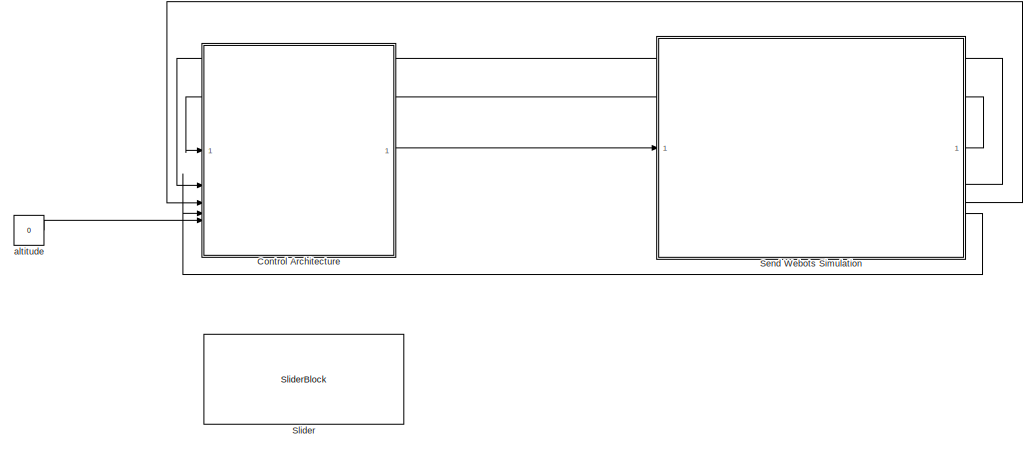
[diagram: root canvas - part 1/3, top right region]
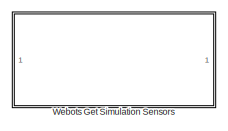
[diagram: root canvas - part 2/3, top left region]
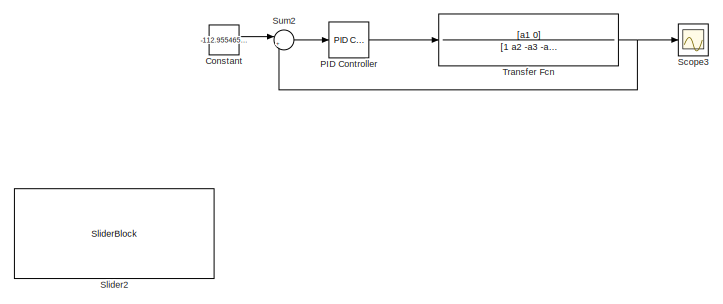
[diagram: root canvas - part 3/3, bottom center region]
MODEL slx_a7795d3d2276
KIND model
CONFIG AbsTol = auto
CONFIG EnableMultiTasking = off
CONFIG FixedStep = 0.016
CONFIG MaxStep = auto
CONFIG MinStep = auto
CONFIG RelTol = 1e-3
CONFIG SampleTimeConstraint = Unconstrained
CONFIG SolverName = ode5
CONFIG StartTime = 0.0
CONFIG StopTime = inf
BLOCK [Constant] Constant
  Commented = on
  Value = -112.9554655870445
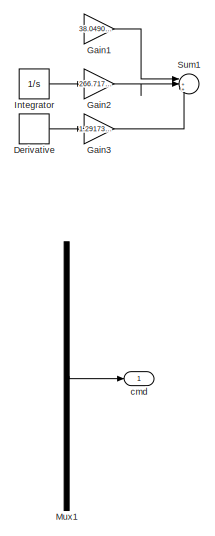
[diagram: Control Architecture - part 1/2, right side, full height]
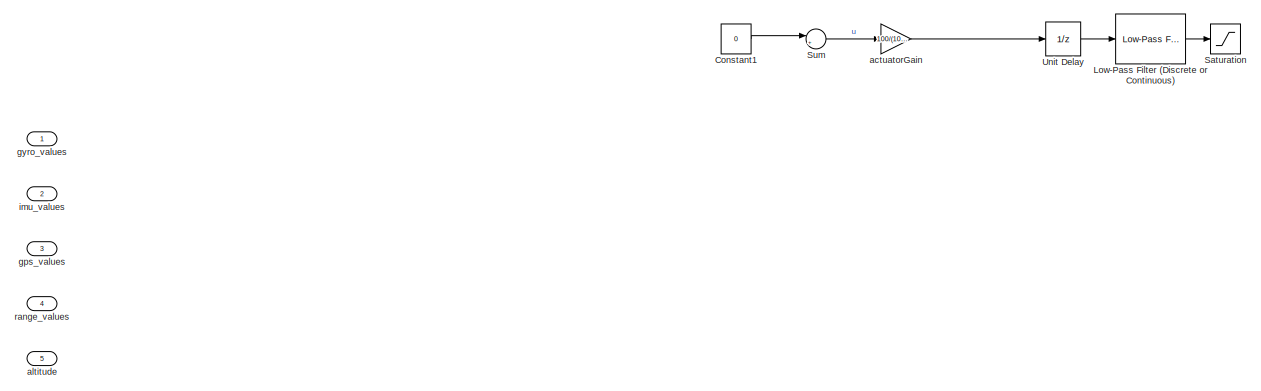
[diagram: Control Architecture - part 2/2, central region]
BLOCK [SubSystem] Control Architecture
BLOCK [Constant] Control Architecture/Constant1
  Value = 0
BLOCK [Derivative] Control Architecture/Derivative
  CoefficientInTFapproximation = 0.016
BLOCK [Gain] Control Architecture/Gain1
  Gain = 38.0490093619521
BLOCK [Gain] Control Architecture/Gain2
  Gain = 266.717514633212
BLOCK [Gain] Control Architecture/Gain3
  Gain = 1.2917321164317
BLOCK [Integrator] Control Architecture/Integrator
  AbsoluteTolerance = 0.016
BLOCK [Reference] Control Architecture/Low-Pass Filter (Discrete or Continuous)  REF=eeGeneralControl/Low-Pass Filter
(Discrete or Continuous)
  LibrarySourceBlock = ee_sl_lib/General Control/Low-Pass Filter\n(Discrete or Continuous)
  SourceBlock = eeGeneralControl/Low-Pass Filter\n(Discrete or Continuous)
  SourceType = Low-Pass Filter (Discrete or Continuous)
BLOCK [Mux] Control Architecture/Mux1
  DisplayOption = bar
BLOCK [Saturate] Control Architecture/Saturation
  LowerLimit = -100
  UpperLimit = 100
BLOCK [Sum] Control Architecture/Sum
  Inputs = |++
BLOCK [Sum] Control Architecture/Sum1
  Inputs = |+++
BLOCK [UnitDelay] Control Architecture/Unit Delay
  HasFrameUpgradeWarning = on
  SampleTime = -1
BLOCK [Gain] Control Architecture/actuatorGain
  Gain = 100/(1000)
BLOCK [Inport] Control Architecture/altitude
  Port = 5
BLOCK [Outport] Control Architecture/cmd
BLOCK [Inport] Control Architecture/gps_values
  Port = 3
BLOCK [Inport] Control Architecture/gyro_values
  NameLocation = top
BLOCK [Inport] Control Architecture/imu_values
  Port = 2
BLOCK [Inport] Control Architecture/range_values
  Port = 4
BLOCK [Reference] PID Controller  REF=slpidlib/PID Controller
  Commented = on
  LibrarySourceBlock = simulink/Continuous/PID Controller
  SourceBlock = slpidlib/PID Controller
  SourceType = PID 1dof
BLOCK [Scope] Scope3
  Commented = on
  Floating = off
  NumInputPorts = 1
  ScopeSpecificationString = Simulink.scopes.TimeScopeBlockCfg('CurrentConfiguration', extmgr.ConfigurationSet(extmgr.Configuration('Core','General UI',true),extmgr.Configuration('Core','Source UI',true),extmgr.Configuration('Sources','WiredSimulink',true,'DataLoggingVariableName','ScopeData1'),extmgr.Configuration('Visuals','Time Domain',true,'SerializedDisplays',{struct('MinYLimReal','-80979417155250256853805277177820653318...<+3288ch>
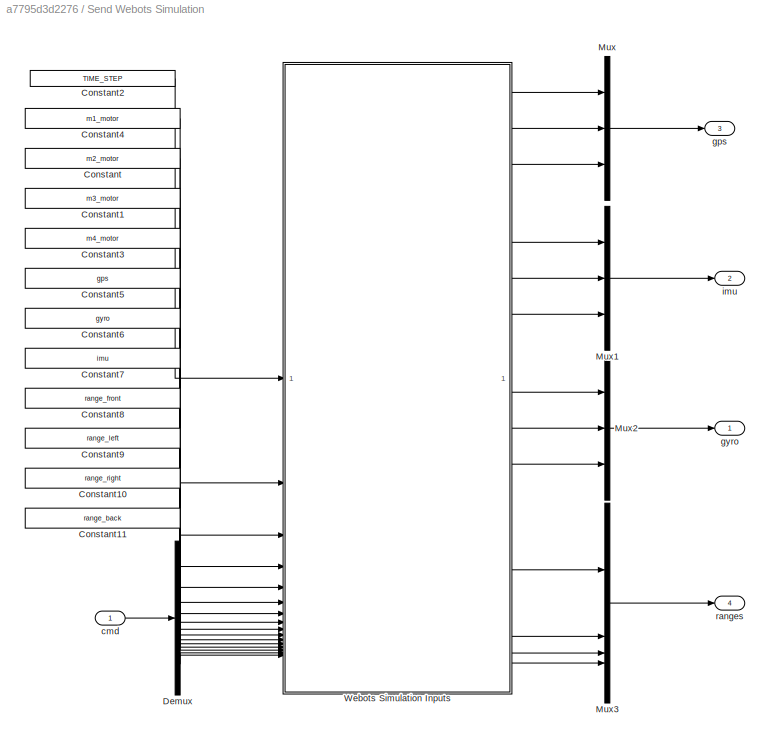
BLOCK [SubSystem] Send Webots Simulation
BLOCK [Constant] Send Webots Simulation/Constant
  Value = m2_motor
BLOCK [Constant] Send Webots Simulation/Constant1
  Value = m3_motor
BLOCK [Constant] Send Webots Simulation/Constant10
  Value = range_right
BLOCK [Constant] Send Webots Simulation/Constant11
  Value = range_back
BLOCK [Constant] Send Webots Simulation/Constant2
  Value = TIME_STEP
BLOCK [Constant] Send Webots Simulation/Constant3
  Value = m4_motor
BLOCK [Constant] Send Webots Simulation/Constant4
  Value = m1_motor
BLOCK [Constant] Send Webots Simulation/Constant5
  Value = gps
BLOCK [Constant] Send Webots Simulation/Constant6
  Value = gyro
BLOCK [Constant] Send Webots Simulation/Constant7
  Value = imu
BLOCK [Constant] Send Webots Simulation/Constant8
  Value = range_front
BLOCK [Constant] Send Webots Simulation/Constant9
  Value = range_left
BLOCK [Demux] Send Webots Simulation/Demux
BLOCK [Mux] Send Webots Simulation/Mux
  DisplayOption = bar
  Inputs = 3
BLOCK [Mux] Send Webots Simulation/Mux1
  DisplayOption = bar
  Inputs = 3
BLOCK [Mux] Send Webots Simulation/Mux2
  DisplayOption = bar
  Inputs = 3
BLOCK [Mux] Send Webots Simulation/Mux3
  DisplayOption = bar
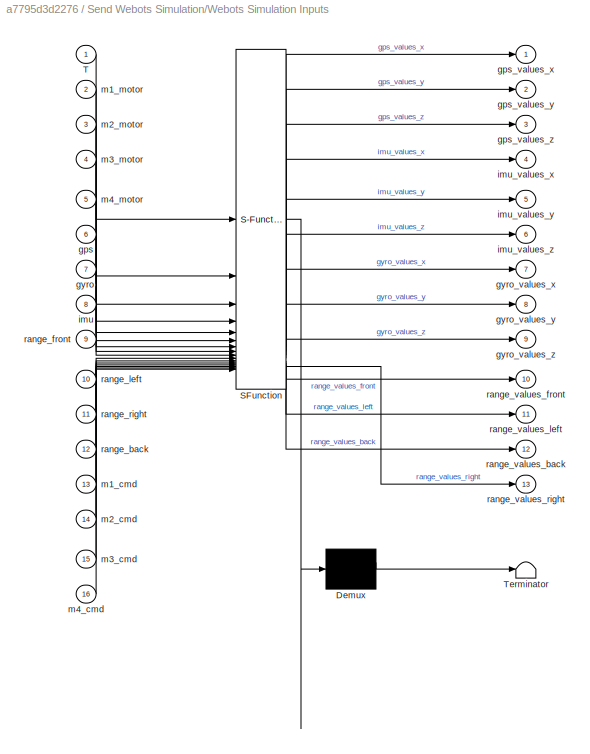
BLOCK [SubSystem] Send Webots Simulation/Webots Simulation Inputs
  ErrorFcn = Stateflow.Translate.translate
  PermitHierarchicalResolution = ExplicitOnly
  SFBlockType = MATLAB Function
  TreatAsAtomicUnit = on
BLOCK [Demux] Send Webots Simulation/Webots Simulation Inputs/ Demux 
  Outputs = 1
BLOCK [S-Function] Send Webots Simulation/Webots Simulation Inputs/ SFunction 
  EnableBusSupport = on
  FunctionName = sf_sfun
  PortCounts = [16 14]
  SFcnIsStateOwnerBlock = off
  SFunctionDeploymentMode = off
  Tag = Stateflow S-Function 2
BLOCK [Terminator] Send Webots Simulation/Webots Simulation Inputs/ Terminator 
BLOCK [Inport] Send Webots Simulation/Webots Simulation Inputs/T
BLOCK [Inport] Send Webots Simulation/Webots Simulation Inputs/gps
  Port = 6
BLOCK [Outport] Send Webots Simulation/Webots Simulation Inputs/gps_values_x
BLOCK [Outport] Send Webots Simulation/Webots Simulation Inputs/gps_values_y
  Port = 2
BLOCK [Outport] Send Webots Simulation/Webots Simulation Inputs/gps_values_z
  Port = 3
BLOCK [Inport] Send Webots Simulation/Webots Simulation Inputs/gyro
  Port = 7
BLOCK [Outport] Send Webots Simulation/Webots Simulation Inputs/gyro_values_x
  Port = 7
BLOCK [Outport] Send Webots Simulation/Webots Simulation Inputs/gyro_values_y
  Port = 8
BLOCK [Outport] Send Webots Simulation/Webots Simulation Inputs/gyro_values_z
  Port = 9
BLOCK [Inport] Send Webots Simulation/Webots Simulation Inputs/imu
  Port = 8
BLOCK [Outport] Send Webots Simulation/Webots Simulation Inputs/imu_values_x
  Port = 4
BLOCK [Outport] Send Webots Simulation/Webots Simulation Inputs/imu_values_y
  Port = 5
BLOCK [Outport] Send Webots Simulation/Webots Simulation Inputs/imu_values_z
  Port = 6
BLOCK [Inport] Send Webots Simulation/Webots Simulation Inputs/m1_cmd
  Port = 13
BLOCK [Inport] Send Webots Simulation/Webots Simulation Inputs/m1_motor
  Port = 2
BLOCK [Inport] Send Webots Simulation/Webots Simulation Inputs/m2_cmd
  Port = 14
BLOCK [Inport] Send Webots Simulation/Webots Simulation Inputs/m2_motor
  Port = 3
BLOCK [Inport] Send Webots Simulation/Webots Simulation Inputs/m3_cmd
  Port = 15
BLOCK [Inport] Send Webots Simulation/Webots Simulation Inputs/m3_motor
  Port = 4
BLOCK [Inport] Send Webots Simulation/Webots Simulation Inputs/m4_cmd
  Port = 16
BLOCK [Inport] Send Webots Simulation/Webots Simulation Inputs/m4_motor
  Port = 5
BLOCK [Inport] Send Webots Simulation/Webots Simulation Inputs/range_back
  Port = 12
BLOCK [Inport] Send Webots Simulation/Webots Simulation Inputs/range_front
  Port = 9
BLOCK [Inport] Send Webots Simulation/Webots Simulation Inputs/range_left
  Port = 10
BLOCK [Inport] Send Webots Simulation/Webots Simulation Inputs/range_right
  Port = 11
BLOCK [Outport] Send Webots Simulation/Webots Simulation Inputs/range_values_back
  Port = 12
BLOCK [Outport] Send Webots Simulation/Webots Simulation Inputs/range_values_front
  Port = 10
BLOCK [Outport] Send Webots Simulation/Webots Simulation Inputs/range_values_left
  Port = 11
BLOCK [Outport] Send Webots Simulation/Webots Simulation Inputs/range_values_right
  Port = 13
BLOCK [Inport] Send Webots Simulation/cmd
BLOCK [Outport] Send Webots Simulation/gps
  Port = 3
BLOCK [Outport] Send Webots Simulation/gyro
BLOCK [Outport] Send Webots Simulation/imu
  Port = 2
BLOCK [Outport] Send Webots Simulation/ranges
  Port = 4
BLOCK [SliderBlock] Slider
BLOCK [SliderBlock] Slider2
  Commented = on
  ScaleMax = 180
  ScaleMin = -180
BLOCK [Sum] Sum2
  Commented = on
  Inputs = |+-
BLOCK [TransferFcn] Transfer Fcn
  Commented = on
  Denominator = [1 a2 -a3  -a4]
  Numerator = [a1 0]
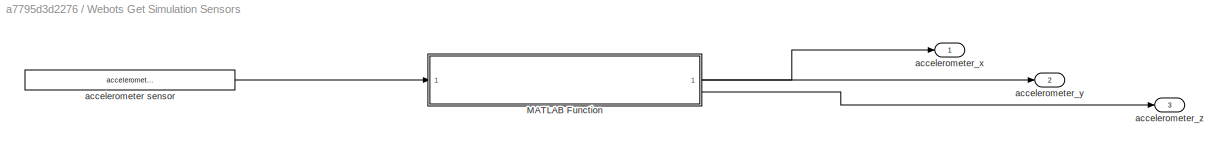
BLOCK [SubSystem] Webots Get Simulation Sensors
  Commented = on
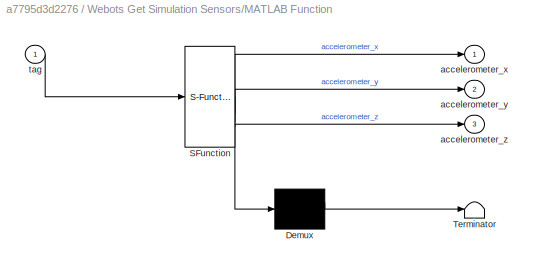
BLOCK [SubSystem] Webots Get Simulation Sensors/MATLAB Function
  ErrorFcn = Stateflow.Translate.translate
  PermitHierarchicalResolution = ExplicitOnly
  SFBlockType = MATLAB Function
  TreatAsAtomicUnit = on
BLOCK [Demux] Webots Get Simulation Sensors/MATLAB Function/ Demux 
  Outputs = 1
BLOCK [S-Function] Webots Get Simulation Sensors/MATLAB Function/ SFunction 
  EnableBusSupport = off
  FunctionName = sf_sfun
  PortCounts = [1 4]
  SFcnIsStateOwnerBlock = off
  SFunctionDeploymentMode = off
  Tag = Stateflow S-Function 1
BLOCK [Terminator] Webots Get Simulation Sensors/MATLAB Function/ Terminator 
BLOCK [Outport] Webots Get Simulation Sensors/MATLAB Function/accelerometer_x
BLOCK [Outport] Webots Get Simulation Sensors/MATLAB Function/accelerometer_y
  Port = 2
BLOCK [Outport] Webots Get Simulation Sensors/MATLAB Function/accelerometer_z
  Port = 3
BLOCK [Inport] Webots Get Simulation Sensors/MATLAB Function/tag
BLOCK [Constant] Webots Get Simulation Sensors/accelerometer sensor
  Value = accelerometer_sensor
BLOCK [Outport] Webots Get Simulation Sensors/accelerometer_x
BLOCK [Outport] Webots Get Simulation Sensors/accelerometer_y
  Port = 2
BLOCK [Outport] Webots Get Simulation Sensors/accelerometer_z
  Port = 3
BLOCK [Constant] altitude
  Value = 0
LINE Constant:1 -> Sum2:1
LINE Control Architecture/Constant1:1 -> Control Architecture/Sum:1
LINE Control Architecture/Derivative:1 -> Control Architecture/Gain3:1
LINE Control Architecture/Gain1:1 -> Control Architecture/Sum1:1
LINE Control Architecture/Gain2:1 -> Control Architecture/Sum1:2
LINE Control Architecture/Gain3:1 -> Control Architecture/Sum1:3
LINE Control Architecture/Integrator:1 -> Control Architecture/Gain2:1
LINE Control Architecture/Low-Pass Filter (Discrete or Continuous):1 -> Control Architecture/Saturation:1
LINE Control Architecture/Mux1:1 -> Control Architecture/cmd:1
LINE Control Architecture/Sum:1 -> Control Architecture/actuatorGain:1
LINE Control Architecture/Unit Delay:1 -> Control Architecture/Low-Pass Filter (Discrete or Continuous):1
LINE Control Architecture/actuatorGain:1 -> Control Architecture/Unit Delay:1
LINE Control Architecture:1 -> Send Webots Simulation:1
LINE PID Controller:1 -> Transfer Fcn:1
LINE Send Webots Simulation/Constant10:1 -> Send Webots Simulation/Webots Simulation Inputs:11
LINE Send Webots Simulation/Constant11:1 -> Send Webots Simulation/Webots Simulation Inputs:12
LINE Send Webots Simulation/Constant1:1 -> Send Webots Simulation/Webots Simulation Inputs:4
LINE Send Webots Simulation/Constant2:1 -> Send Webots Simulation/Webots Simulation Inputs:1
LINE Send Webots Simulation/Constant3:1 -> Send Webots Simulation/Webots Simulation Inputs:5
LINE Send Webots Simulation/Constant4:1 -> Send Webots Simulation/Webots Simulation Inputs:2
LINE Send Webots Simulation/Constant5:1 -> Send Webots Simulation/Webots Simulation Inputs:6
LINE Send Webots Simulation/Constant6:1 -> Send Webots Simulation/Webots Simulation Inputs:7
LINE Send Webots Simulation/Constant7:1 -> Send Webots Simulation/Webots Simulation Inputs:8
LINE Send Webots Simulation/Constant8:1 -> Send Webots Simulation/Webots Simulation Inputs:9
LINE Send Webots Simulation/Constant9:1 -> Send Webots Simulation/Webots Simulation Inputs:10
LINE Send Webots Simulation/Constant:1 -> Send Webots Simulation/Webots Simulation Inputs:3
LINE Send Webots Simulation/Demux:1 -> Send Webots Simulation/Webots Simulation Inputs:13
LINE Send Webots Simulation/Demux:2 -> Send Webots Simulation/Webots Simulation Inputs:14
LINE Send Webots Simulation/Demux:3 -> Send Webots Simulation/Webots Simulation Inputs:15
LINE Send Webots Simulation/Demux:4 -> Send Webots Simulation/Webots Simulation Inputs:16
LINE Send Webots Simulation/Mux1:1 -> Send Webots Simulation/imu:1
LINE Send Webots Simulation/Mux2:1 -> Send Webots Simulation/gyro:1
LINE Send Webots Simulation/Mux3:1 -> Send Webots Simulation/ranges:1
LINE Send Webots Simulation/Mux:1 -> Send Webots Simulation/gps:1
LINE Send Webots Simulation/Webots Simulation Inputs:1 -> Send Webots Simulation/Mux:1
LINE Send Webots Simulation/Webots Simulation Inputs:10 -> Send Webots Simulation/Mux3:1
LINE Send Webots Simulation/Webots Simulation Inputs:11 -> Send Webots Simulation/Mux3:2
LINE Send Webots Simulation/Webots Simulation Inputs:12 -> Send Webots Simulation/Mux3:3
LINE Send Webots Simulation/Webots Simulation Inputs:13 -> Send Webots Simulation/Mux3:4
LINE Send Webots Simulation/Webots Simulation Inputs:2 -> Send Webots Simulation/Mux:2
LINE Send Webots Simulation/Webots Simulation Inputs:3 -> Send Webots Simulation/Mux:3
LINE Send Webots Simulation/Webots Simulation Inputs:4 -> Send Webots Simulation/Mux1:1
LINE Send Webots Simulation/Webots Simulation Inputs:5 -> Send Webots Simulation/Mux1:2
LINE Send Webots Simulation/Webots Simulation Inputs:6 -> Send Webots Simulation/Mux1:3
LINE Send Webots Simulation/Webots Simulation Inputs:7 -> Send Webots Simulation/Mux2:1
LINE Send Webots Simulation/Webots Simulation Inputs:8 -> Send Webots Simulation/Mux2:2
LINE Send Webots Simulation/Webots Simulation Inputs:9 -> Send Webots Simulation/Mux2:3
LINE Send Webots Simulation/cmd:1 -> Send Webots Simulation/Demux:1
LINE Send Webots Simulation:1 -> Control Architecture:1
LINE Send Webots Simulation:2 -> Control Architecture:2
LINE Send Webots Simulation:3 -> Control Architecture:3
LINE Send Webots Simulation:4 -> Control Architecture:4
LINE Sum2:1 -> PID Controller:1
NET Transfer Fcn:1 -> Scope3:1, Sum2:2
LINE Webots Get Simulation Sensors/MATLAB Function:1 -> Webots Get Simulation Sensors/accelerometer_x:1
LINE Webots Get Simulation Sensors/MATLAB Function:2 -> Webots Get Simulation Sensors/accelerometer_y:1
LINE Webots Get Simulation Sensors/MATLAB Function:3 -> Webots Get Simulation Sensors/accelerometer_z:1
LINE Webots Get Simulation Sensors/accelerometer sensor:1 -> Webots Get Simulation Sensors/MATLAB Function:1
LINE altitude:1 -> Control Architecture:5
note: NET lines group one-source signal fan-out (src -> all destinations, sorted); 1:1 wires keep LINE
CHART Webots Get Simulation Sensors/MATLAB Function states=1 transitions=1
  STATE_LABEL 'eML_blk_kernel()'
  STATE_LABEL 'SCRIPT:\nfunction [accelerometer_x,accelerometer_y,accelerometer_z] = accelerometer_sensor_get(tag)\n\nperiod = wb_accelerometer_get_sampling_period(tag)\nvalues = wb_accelerometer_get_values(tag);\naccelerometer_x = values(1);\naccelerometer_y = values(2);\naccelerometer_z = values(3);\n'
CHART Send Webots Simulation/Webots Simulation Inputs states=1 transitions=1
  STATE_LABEL 'eML_blk_kernel()'
  STATE_LABEL 'SCRIPT:\nfunction [gps_values_x,gps_values_y,gps_values_z,imu_values_x,imu_values_y,imu_values_z,gyro_values_x,gyro_values_y,gyro_values_z,range_values_front,range_values_left,range_values_back,range_values_right]  =   simulation(T,m1_motor,m2_motor,m3_motor,m4_motor,gps,gyro,imu,range_front,range_left,range_right,range_back,m1_cmd,m2_cmd,m3_cmd,m4_cmd)\n\n\ngps_values=zeros(1,3);\ngyro_values=zeros(1,...<+871ch>'
CHART  states=0 transitions=0
CHART  states=0 transitions=0
